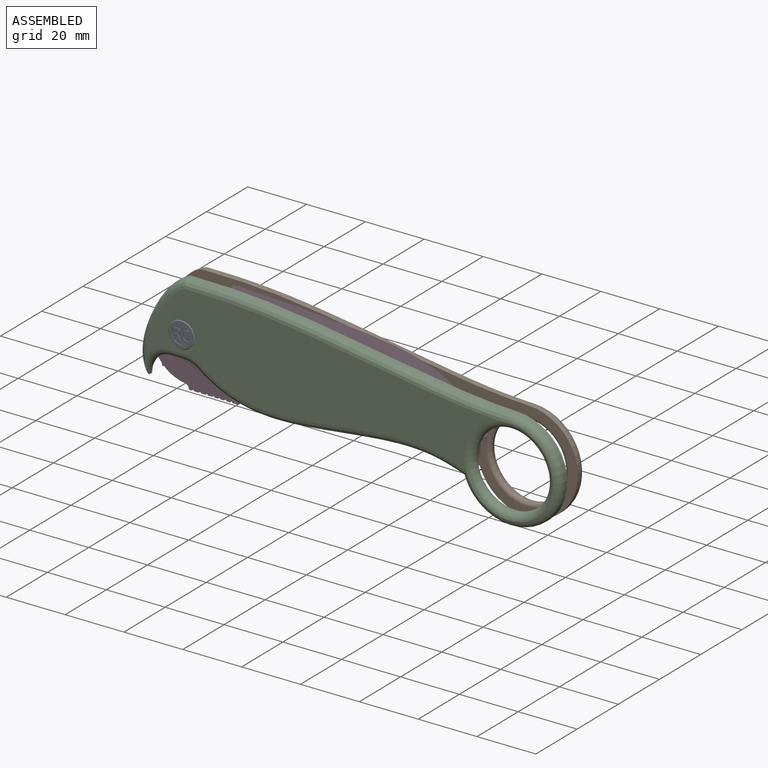
[diagram: assembled view]
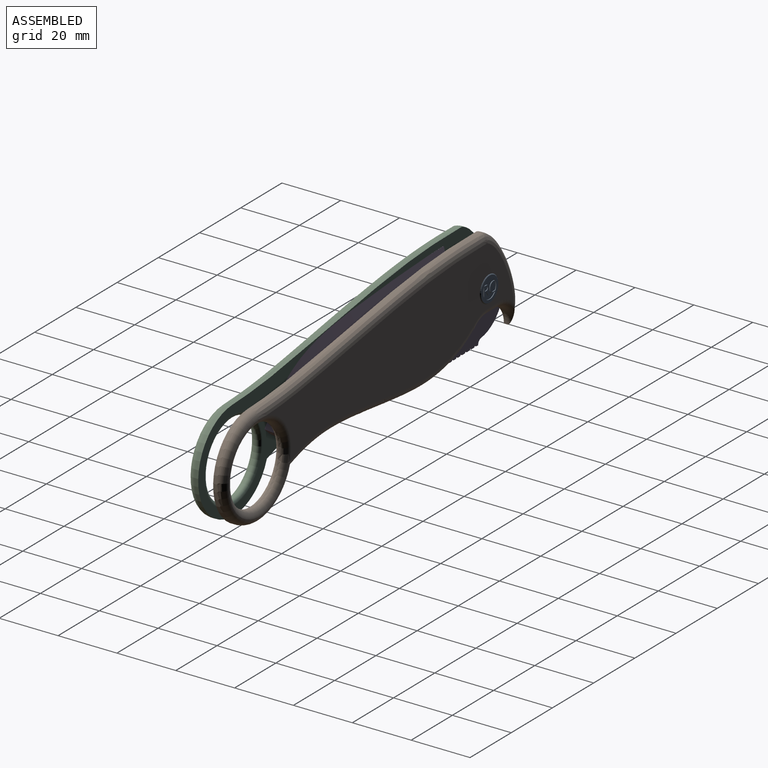
[diagram: assembled view, second angle]
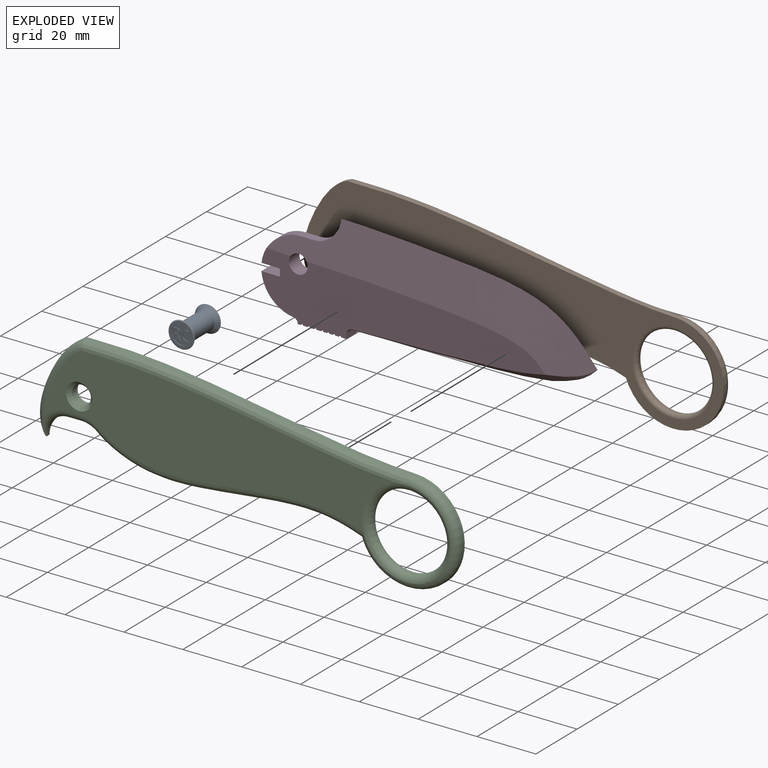
[diagram: exploded view]
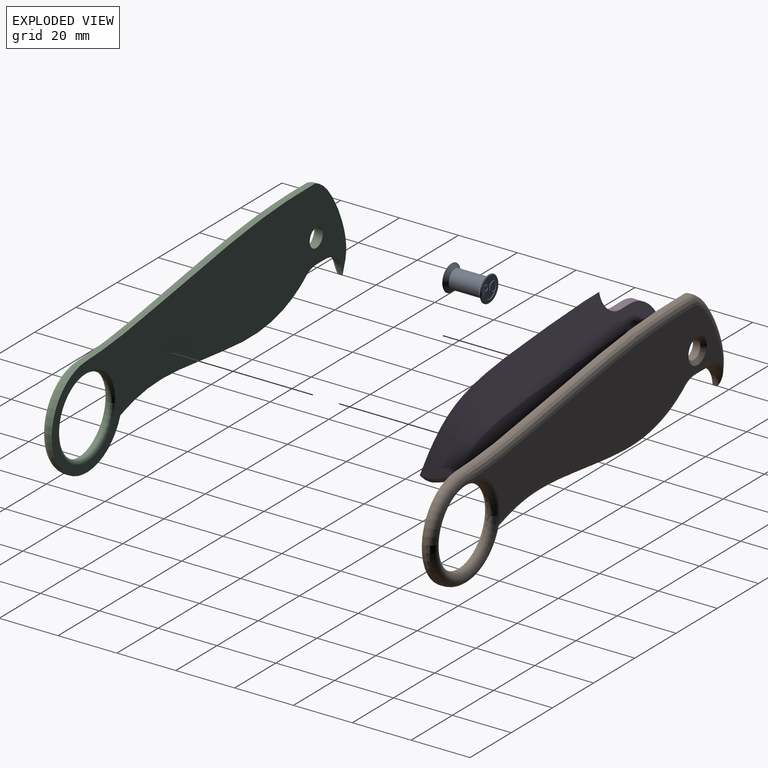
[diagram: exploded view, second angle]
ASSEMBLY  parts=4 mates=3
PART A: 89 faces, bbox 8.9x13.2x8.9 mm
  f0: cylinder r=3.17mm len=10.16mm, axis (0,1,0), area 202.7mm2, adj f1,f2
  f1: cone r=4.45mm half-angle=45deg, axis (0,-1,0), area 43mm2, adj f0,f45
  f2: cone r=3.17mm half-angle=45deg, axis (0,1,0), area 43mm2, adj f0,f88
  f3: plane 0.56x0.25mm, normal (0,0,1), area 0.1mm2, adj f4,f39,f40,f41
  f4: plane 1.35x0.25mm, normal (1,0,0), area 0.3mm2, adj f3,f5,f40,f41
  f5: plane 0.53x0.25mm, normal (0,0,-1), area 0.1mm2, adj f4,f6,f40,f41
  f6: extruded ~0.66x0.25mm, area 0.2mm2, adj f5,f7,f40,f41
  f7: extruded ~0.5x0.25mm, area 0.1mm2, adj f6,f8,f40,f41
  f8: extruded ~0.52x0.25mm, area 0.1mm2, adj f7,f39,f40,f41
  f9: cylinder r=3.17mm len=5.31mm, axis (0,1,0), area 1.6mm2, adj f10,f36,f40,f44
  f10: plane 0.35x0.25mm, normal (0,0,-1), area 0.1mm2, adj f9,f11,f40,f44
  f11: plane 1.47x0.25mm, normal (1,0,0), area 0.4mm2, adj f10,f12,f40,f44
  f12: plane 0.74x0.25mm, normal (0,0,-1), area 0.2mm2, adj f11,f13,f40,f44
  f13: plane 1.47x0.85mm, normal (-0.86,0,-0.5), area 0.4mm2, adj f12,f14,f40,f44
  f14: plane 0.49x0.25mm, normal (0,0,-1), area 0.1mm2, adj f13,f15,f40,f44
  f15: plane 1.59x0.96mm, normal (0.86,0,0.52), area 0.5mm2, adj f14,f16,f40,f44
  f16: extruded ~0.95x0.71mm, area 0.3mm2, adj f15,f17,f40,f44
  f17: extruded ~0.75x0.31mm, area 0.2mm2, adj f16,f18,f40,f44
  f18: extruded ~0.96x0.25mm, area 0.3mm2, adj f17,f19,f40,f44
  f19: plane 0.93x0.25mm, normal (0,0,1), area 0.2mm2, adj f18,f20,f40,f44
  f20: cylinder r=3.17mm len=5.35mm, axis (0,1,0), area 1.6mm2, adj f19,f21,f40,f44
  f21: extruded ~0.82x0.25mm, area 0.2mm2, adj f20,f22,f40,f44
  f22: extruded ~0.91x0.25mm, area 0.2mm2, adj f21,f23,f40,f44
  f23: extruded ~0.63x0.59mm, area 0.2mm2, adj f22,f24,f40,f44
  f24: extruded ~0.96x0.25mm, area 0.3mm2, adj f23,f25,f40,f44
  f25: extruded ~1.35x0.42mm, area 0.4mm2, adj f24,f26,f40,f44
  f26: extruded ~1.2x0.47mm, area 0.3mm2, adj f25,f36,f40,f44
  f27: plane 0.25x0.25mm, normal (0.9,0,-0.44), area 0.1mm2, adj f28,f37,f40,f43
  f28: cylinder r=3.17mm len=3.14mm, axis (0,1,0), area 0.8mm2, adj f27,f29,f40,f43
  f29: plane 0.31x0.25mm, normal (1,0,0), area 0.1mm2, adj f28,f30,f40,f43
  f30: extruded ~0.84x0.25mm, area 0.2mm2, adj f29,f31,f40,f43
  f31: extruded ~0.93x0.38mm, area 0.3mm2, adj f30,f32,f40,f43
  f32: extruded ~1.07x0.33mm, area 0.3mm2, adj f31,f33,f40,f43
  f33: extruded ~1.06x0.34mm, area 0.3mm2, adj f32,f34,f40,f43
  f34: extruded ~0.92x0.39mm, area 0.3mm2, adj f33,f37,f40,f43
  f35: plane 3.37x0.25mm, normal (-1,0,0), area 0.9mm2, adj f38,f40,f42
  f36: extruded ~0.87x0.25mm, area 0.2mm2, adj f9,f26,f40,f44
  f37: extruded ~0.8x0.25mm, area 0.2mm2, adj f27,f34,f40,f43
  f38: cylinder r=3.17mm len=3.37mm, axis (0,1,0), area 0.9mm2, adj f35,f40,f42
  f39: extruded ~0.64x0.25mm, area 0.2mm2, adj f3,f8,f40,f41
  f40: plane 8.38x8.38mm, normal (0,-1,0), area 30mm2, adj f3,f4,f5,f6,f7,f8,f9,f10
  f41: plane 1.4x1.35mm, normal (0,-1,0), area 1.7mm2, adj f3,f4,f5,f6,f7,f8,f39
  f42: plane 3.37x0.49mm, normal (0,-1,0), area 1.1mm2, adj f35,f38
  f43: plane 3.14x2.55mm, normal (0,-1,0), area 6.3mm2, adj f27,f28,f29,f30,f31,f32,f33,f34
  f44: plane 6.35x5.35mm, normal (0,-1,0), area 16.1mm2, adj f9,f10,f11,f12,f13,f14,f15,f16
  f45: cone r=4.45mm half-angle=45deg, axis (0,1,0), area 9.7mm2, adj f1,f40
  f46: plane 0.56x0.25mm, normal (0,0,1), area 0.1mm2, adj f47,f82,f83,f84
  f47: plane 1.35x0.25mm, normal (-1,0,0), area 0.3mm2, adj f46,f48,f83,f84
  f48: plane 0.53x0.25mm, normal (0,0,-1), area 0.1mm2, adj f47,f49,f83,f84
  f49: extruded ~0.66x0.25mm, area 0.2mm2, adj f48,f50,f83,f84
  f50: extruded ~0.5x0.25mm, area 0.1mm2, adj f49,f51,f83,f84
  f51: extruded ~0.52x0.25mm, area 0.1mm2, adj f50,f82,f83,f84
  f52: cylinder r=3.17mm len=5.31mm, axis (0,-1,0), area 1.6mm2, adj f53,f79,f83,f87
  f53: plane 0.35x0.25mm, normal (0,0,-1), area 0.1mm2, adj f52,f54,f83,f87
  f54: plane 1.47x0.25mm, normal (-1,0,0), area 0.4mm2, adj f53,f55,f83,f87
  f55: plane 0.74x0.25mm, normal (0,0,-1), area 0.2mm2, adj f54,f56,f83,f87
  f56: plane 1.47x0.85mm, normal (0.86,0,-0.5), area 0.4mm2, adj f55,f57,f83,f87
  f57: plane 0.49x0.25mm, normal (0,0,-1), area 0.1mm2, adj f56,f58,f83,f87
  f58: plane 1.59x0.96mm, normal (-0.86,0,0.52), area 0.5mm2, adj f57,f59,f83,f87
  f59: extruded ~0.95x0.71mm, area 0.3mm2, adj f58,f60,f83,f87
  f60: extruded ~0.75x0.31mm, area 0.2mm2, adj f59,f61,f83,f87
  f61: extruded ~0.96x0.25mm, area 0.3mm2, adj f60,f62,f83,f87
  f62: plane 0.93x0.25mm, normal (0,0,1), area 0.2mm2, adj f61,f63,f83,f87
  f63: cylinder r=3.17mm len=5.35mm, axis (0,-1,0), area 1.6mm2, adj f62,f64,f83,f87
  f64: extruded ~0.82x0.25mm, area 0.2mm2, adj f63,f65,f83,f87
  f65: extruded ~0.91x0.25mm, area 0.2mm2, adj f64,f66,f83,f87
  f66: extruded ~0.63x0.59mm, area 0.2mm2, adj f65,f67,f83,f87
  f67: extruded ~0.96x0.25mm, area 0.3mm2, adj f66,f68,f83,f87
  f68: extruded ~1.35x0.42mm, area 0.4mm2, adj f67,f69,f83,f87
  f69: extruded ~1.2x0.47mm, area 0.3mm2, adj f68,f79,f83,f87
  f70: plane 0.25x0.25mm, normal (-0.9,0,-0.44), area 0.1mm2, adj f71,f80,f83,f86
  f71: cylinder r=3.17mm len=3.14mm, axis (0,-1,0), area 0.8mm2, adj f70,f72,f83,f86
  f72: plane 0.31x0.25mm, normal (-1,0,0), area 0.1mm2, adj f71,f73,f83,f86
  f73: extruded ~0.84x0.25mm, area 0.2mm2, adj f72,f74,f83,f86
  f74: extruded ~0.93x0.38mm, area 0.3mm2, adj f73,f75,f83,f86
  f75: extruded ~1.07x0.33mm, area 0.3mm2, adj f74,f76,f83,f86
  f76: extruded ~1.06x0.34mm, area 0.3mm2, adj f75,f77,f83,f86
  f77: extruded ~0.92x0.39mm, area 0.3mm2, adj f76,f80,f83,f86
  f78: plane 3.37x0.25mm, normal (1,0,0), area 0.9mm2, adj f81,f83,f85
  f79: extruded ~0.87x0.25mm, area 0.2mm2, adj f52,f69,f83,f87
  f80: extruded ~0.8x0.25mm, area 0.2mm2, adj f70,f77,f83,f86
  f81: cylinder r=3.17mm len=3.37mm, axis (0,-1,0), area 0.9mm2, adj f78,f83,f85
  f82: extruded ~0.64x0.25mm, area 0.2mm2, adj f46,f51,f83,f84
  f83: plane 8.38x8.38mm, normal (0,1,0), area 30mm2, adj f46,f47,f48,f49,f50,f51,f52,f53
  f84: plane 1.4x1.35mm, normal (0,1,0), area 1.7mm2, adj f46,f47,f48,f49,f50,f51,f82
  f85: plane 3.37x0.49mm, normal (0,1,0), area 1.1mm2, adj f78,f81
  f86: plane 3.14x2.55mm, normal (0,1,0), area 6.3mm2, adj f70,f71,f72,f73,f74,f75,f76,f77
  f87: plane 6.35x5.35mm, normal (0,1,0), area 16.1mm2, adj f52,f53,f54,f55,f56,f57,f58,f59
  f88: cone r=4.19mm half-angle=45deg, axis (0,-1,0), area 9.7mm2, adj f2,f83
PART B: 20 faces, bbox 147.9x4.3x48 mm
  f0: extruded ~33.36x15.15mm, area 49.7mm2, adj f1,f7,f9,f15
  f1: extruded ~111.35x12.16mm, area 142.4mm2, adj f0,f2,f9,f13
  f2: cylinder r=17.17mm len=34.32mm, axis (0,-1,0), area 94.3mm2, adj f1,f3,f9,f11
  f3: extruded ~89.27x7.75mm, area 116.2mm2, adj f2,f4,f9,f12
  f4: cylinder r=8.26mm len=5.84mm, axis (0,-1,0), area 8.2mm2, adj f3,f5,f9,f14
  f5: plane 4.45x1.27mm, normal (0,0,-1), area 5.6mm2, adj f4,f7,f9,f16
  f6: cylinder r=3.17mm len=6.35mm, axis (0,-1,0), area 50.7mm2, adj f9,f18
  f7: cylinder r=8.26mm len=8.26mm, axis (0,-1,0), area 16.5mm2, adj f0,f5,f9,f17
  f8: plane 119.64x30.4mm, normal (0,1,0), area 2371.7mm2, adj f10,f12,f13,f14,f15,f16,f17,f18
  f9: plane 143.39x46.54mm, normal (0,-1,0), area 3309.6mm2, adj f0,f1,f2,f3,f4,f5,f6,f7
  f10: torus R=15.24mm, axis (0,1,0), area 320.4mm2, adj f8,f11,f12,f13,f19
  f11: torus R=14.63mm, axis (0,1,0), area 262.9mm2, adj f2,f10,f12,f13
  f12: bspline ~92.8x10.84mm, area 365.8mm2, adj f3,f8,f10,f11,f14
  f13: bspline ~119.88x14.87mm, area 445.9mm2, adj f1,f8,f10,f11,f15
  f14: torus R=10.79mm, axis (0,1,0), area 28.4mm2, adj f4,f8,f12,f16
  f15: bspline ~33.57x15.82mm, area 134.9mm2, adj f0,f8,f13,f17
  f16: cylinder r=2.54mm len=4.45mm, axis (1,0,0), area 17.7mm2, adj f5,f8,f14,f17
  f17: torus R=10.79mm, axis (0,1,0), area 42.3mm2, adj f7,f8,f15,f16
  f18: cone r=3.17mm half-angle=45deg, axis (0,1,0), area 43mm2, adj f6,f8
  f19: torus R=13.97mm, axis (0,1,0), area 165mm2, adj f9,f10
PART C: 20 faces, bbox 147.9x4.3x48 mm
  f0: extruded ~111.35x12.16mm, area 142.4mm2, adj f1,f6,f9,f14
  f1: extruded ~33.36x15.15mm, area 49.7mm2, adj f0,f2,f9,f16
  f2: cylinder r=8.26mm len=8.26mm, axis (0,1,0), area 16.5mm2, adj f1,f3,f9,f17
  f3: plane 4.45x1.27mm, normal (0,0,-1), area 5.6mm2, adj f2,f4,f9,f15
  f4: cylinder r=8.26mm len=5.84mm, axis (0,1,0), area 8.2mm2, adj f3,f5,f9,f13
  f5: extruded ~89.27x7.75mm, area 116.2mm2, adj f4,f6,f9,f10
  f6: cylinder r=17.17mm len=34.32mm, axis (0,1,0), area 94.3mm2, adj f0,f5,f9,f11
  f7: cylinder r=3.17mm len=6.35mm, axis (0,1,0), area 50.7mm2, adj f9,f18
  f8: plane 119.64x30.4mm, normal (0,-1,0), area 2371.7mm2, adj f10,f12,f13,f14,f15,f16,f17,f18
  f9: plane 143.39x46.54mm, normal (0,1,0), area 3309.6mm2, adj f0,f1,f2,f3,f4,f5,f6,f7
  f10: bspline ~92.8x10.84mm, area 365.8mm2, adj f5,f8,f11,f12,f13
  f11: torus R=14.63mm, axis (0,-1,0), area 262.9mm2, adj f6,f10,f12,f14
  f12: torus R=15.24mm, axis (0,-1,0), area 320.5mm2, adj f8,f10,f11,f14,f19
  f13: torus R=10.79mm, axis (0,-1,0), area 28.4mm2, adj f4,f8,f10,f15
  f14: bspline ~132.52x15.39mm, area 446mm2, adj f0,f8,f11,f12,f16
  f15: cylinder r=2.54mm len=4.45mm, axis (-1,0,0), area 17.7mm2, adj f3,f8,f13,f17
  f16: bspline ~33.57x15.82mm, area 134.9mm2, adj f1,f8,f14,f17
  f17: torus R=10.79mm, axis (0,-1,0), area 42.3mm2, adj f2,f8,f15,f16
  f18: cone r=3.17mm half-angle=45deg, axis (0,-1,0), area 43mm2, adj f7,f8
  f19: torus R=13.97mm, axis (0,-1,0), area 165mm2, adj f9,f12
PART D: 37 faces, bbox 117.3x12.1x37.4 mm
  f0: plane 7.19x0.06mm, normal (0,0,-1), area 0.2mm2, adj f1,f31,f32
  f1: cylinder r=8.26mm len=8.26mm, axis (0,1,0), area 23.7mm2, adj f0,f2,f31,f32
  f2: plane 4.45x2.9mm, normal (0,0,-1), area 12.8mm2, adj f1,f3,f31,f32
  f3: cylinder r=12.54mm len=12.48mm, axis (0,1,0), area 79.3mm2, adj f2,f4,f29,f30,f31,f32
  f4: plane 6.29x5.08mm, normal (0,0,1), area 31.9mm2, adj f3,f5,f29,f30
  f5: plane 5.08x2.54mm, normal (1,0,0), area 12.9mm2, adj f4,f6,f29,f30
  f6: plane 6.29x5.08mm, normal (0,0,-1), area 31.9mm2, adj f5,f7,f29,f30
  f7: cylinder r=12.54mm len=11.19mm, axis (0,1,0), area 86.4mm2, adj f6,f8,f29,f30
  f8: cylinder r=1.6mm len=5.08mm, axis (0,1,0), area 11.8mm2, adj f7,f9,f29,f30
  f9: plane 5.08x0.08mm, normal (1,0,0), area 0.4mm2, adj f8,f10,f29,f30
  f10: plane 5.08x0.99mm, normal (0,0,1), area 5mm2, adj f9,f11,f29,f30
  f11: cylinder r=0.41mm len=5.08mm, axis (0,1,0), area 6.5mm2, adj f10,f12,f29,f30
  f12: plane 5.08x1.47mm, normal (0,0,1), area 7.5mm2, adj f11,f13,f29,f30
  f13: cylinder r=0.41mm len=5.08mm, axis (0,1,0), area 6.5mm2, adj f12,f14,f29,f30
  f14: plane 5.08x1.47mm, normal (0,0,1), area 7.5mm2, adj f13,f15,f29,f30
  f15: cylinder r=0.41mm len=5.08mm, axis (0,1,0), area 6.5mm2, adj f14,f16,f29,f30
  f16: plane 5.08x1.47mm, normal (0,0,1), area 7.5mm2, adj f15,f17,f29,f30
  f17: cylinder r=0.41mm len=5.08mm, axis (0,1,0), area 6.5mm2, adj f16,f18,f29,f30
  f18: plane 5.08x1.22mm, normal (0,0,1), area 6.2mm2, adj f17,f19,f29,f30
  f19: cylinder r=0.41mm len=5.08mm, axis (0,1,0), area 6.5mm2, adj f18,f20,f29,f30
  f20: plane 5.08x1.22mm, normal (0,0,1), area 6.2mm2, adj f19,f21,f29,f30
  f21: cylinder r=0.41mm len=5.08mm, axis (0,1,0), area 6.5mm2, adj f20,f22,f29,f30
  f22: plane 5.08x1.22mm, normal (0,0,1), area 6.2mm2, adj f21,f23,f29,f30
  f23: cylinder r=0.41mm len=5.08mm, axis (0,1,0), area 6.5mm2, adj f22,f24,f29,f30
  f24: plane 5.08x1.75mm, normal (0,0,1), area 8.9mm2, adj f23,f25,f29,f30
  f25: plane 5.08x1.62mm, normal (-1,0,0), area 8.2mm2, adj f24,f26,f29,f30
  f26: cylinder r=1.59mm len=5.08mm, axis (0,1,0), area 12.3mm2, adj f25,f27,f29,f30,f33,f36
  f27: extruded ~66.5x4.64mm, area 230.1mm2, adj f26,f34,f35
  f28: cylinder r=3.17mm len=6.35mm, axis (0,1,0), area 101.3mm2, adj f29,f30,f31,f32
  f29: plane 98.79x22.16mm, normal (0,-1,0), area 1320.3mm2, adj f3,f4,f5,f6,f7,f8,f9,f10
  f30: plane 97.81x20.53mm, normal (0,1,0), area 1321.2mm2, adj f3,f4,f5,f6,f7,f8,f9,f10
  f31: bspline ~110.88x32.38mm, area 1430.6mm2, adj f0,f1,f2,f3,f28,f29,f32,f34
  f32: bspline ~110.88x32.38mm, area 1430.8mm2, adj f0,f1,f2,f3,f28,f30,f31,f35
  f33: bspline ~3.81x3.75mm, area 0.2mm2, adj f26,f29,f34
  f34: bspline ~89.08x10.96mm, area 115.4mm2, adj f27,f29,f31,f33,f35
  f35: bspline ~89.19x11.03mm, area 115.3mm2, adj f27,f30,f32,f34,f36
  f36: bspline ~3.81x3.75mm, area 0.2mm2, adj f26,f30,f35
PLACE A t=(0,0.06,0.09)mm fixed
PLACE B t=(0,2.6,0.09)mm
PLACE C t=(0,2.6,0.09)mm
PLACE D rot(axis=(0,-1,0),179.4deg) t=(0,2.6,0.09)mm
MATE revolute A.f0 <-> D.f28  axis (0,1,0) through (0,0.06,0.09)mm
MATE revolute A.f1 <-> C.f7  axis (0,-1,0) through (0,-6.29,0.09)mm
MATE revolute A.f1 <-> B.f6  axis (0,1,0) through (0,6.41,0.09)mm
